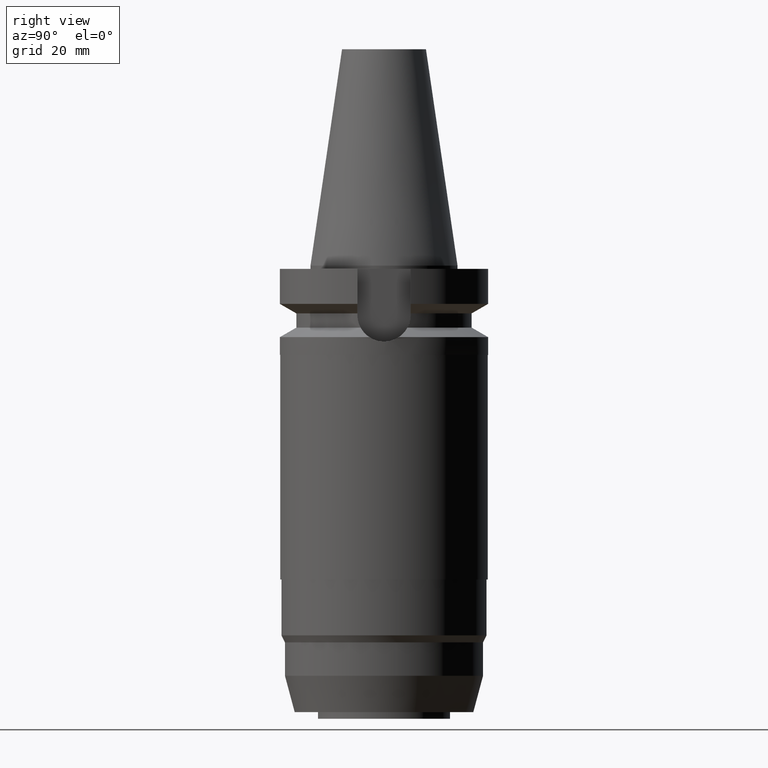
[diagram: clean part render]
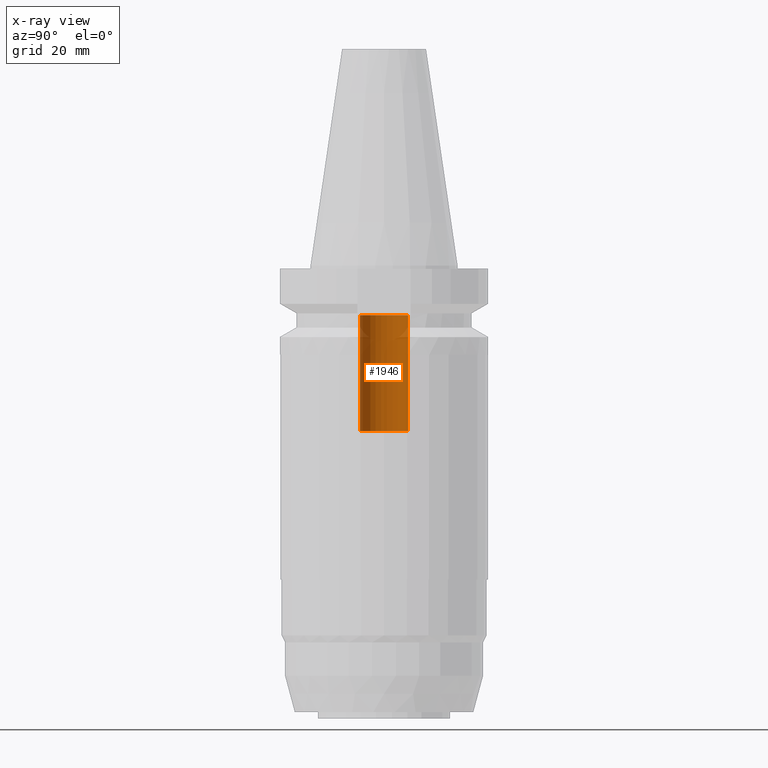
[diagram: x-ray — body ghosted, one internal face saturated and labeled with its STEP entity id]
A machine part, right view, then the same camera in x-ray: the body is ghosted and one INTERNAL B-rep face — a face not visible from any outside direction — is saturated and labeled: STEP entity #1946.
In plain terms, the highlighted cylindrical surface (edge-blend (fillet) strip) has radius 7.25 mm, axis along (0, 0, -1).
Its self-contained STEP definition (entity closure, byte-faithful):
#916=CARTESIAN_POINT('',(0.E0,2.149500061863E-14,-5.E1));
#917=DIRECTION('',(0.E0,0.E0,-1.E0));
#918=DIRECTION('',(0.E0,-1.E0,0.E0));
#919=AXIS2_PLACEMENT_3D('',#916,#917,#918);
#932=DIRECTION('',(0.E0,0.E0,1.E0));
#933=VECTOR('',#932,3.5E1);
#934=CARTESIAN_POINT('',(0.E0,-7.25E0,-5.E1));
#935=LINE('',#934,#933);
#939=DIRECTION('',(0.E0,0.E0,1.E0));
#940=VECTOR('',#939,3.5E1);
#941=CARTESIAN_POINT('',(0.E0,7.25E0,-5.E1));
#942=LINE('',#941,#940);
#954=CARTESIAN_POINT('',(0.E0,2.149500061863E-14,-1.5E1));
#955=DIRECTION('',(0.E0,0.E0,1.E0));
#956=DIRECTION('',(0.E0,1.E0,0.E0));
#957=AXIS2_PLACEMENT_3D('',#954,#955,#956);
#1092=CARTESIAN_POINT('',(0.E0,-7.25E0,-1.5E1));
#1093=CARTESIAN_POINT('',(0.E0,7.25E0,-1.5E1));
#1094=VERTEX_POINT('',#1092);
#1095=VERTEX_POINT('',#1093);
#1096=CARTESIAN_POINT('',(0.E0,7.25E0,-5.E1));
#1097=VERTEX_POINT('',#1096);
#1098=CARTESIAN_POINT('',(0.E0,-7.25E0,-5.E1));
#1099=VERTEX_POINT('',#1098);
#1932=CARTESIAN_POINT('',(0.E0,2.149500061863E-14,7.552E1));
#1933=DIRECTION('',(0.E0,0.E0,-1.E0));
#1934=DIRECTION('',(0.E0,-1.E0,0.E0));
#1935=AXIS2_PLACEMENT_3D('',#1932,#1933,#1934);
#1936=CYLINDRICAL_SURFACE('',#1935,7.25E0);
#1938=ORIENTED_EDGE('',*,*,#1937,.F.);
#1939=ORIENTED_EDGE('',*,*,#1925,.F.);
#1941=ORIENTED_EDGE('',*,*,#1940,.T.);
#1943=ORIENTED_EDGE('',*,*,#1942,.F.);
#1944=EDGE_LOOP('',(#1938,#1939,#1941,#1943));
#1945=FACE_OUTER_BOUND('',#1944,.F.);
#920=CIRCLE('',#919,7.25E0);
#958=CIRCLE('',#957,7.25E0);
#1925=EDGE_CURVE('',#1099,#1097,#920,.T.);
#1937=EDGE_CURVE('',#1097,#1095,#942,.T.);
#1940=EDGE_CURVE('',#1099,#1094,#935,.T.);
#1942=EDGE_CURVE('',#1095,#1094,#958,.T.);
#1946=ADVANCED_FACE('',(#1945),#1936,.F.);